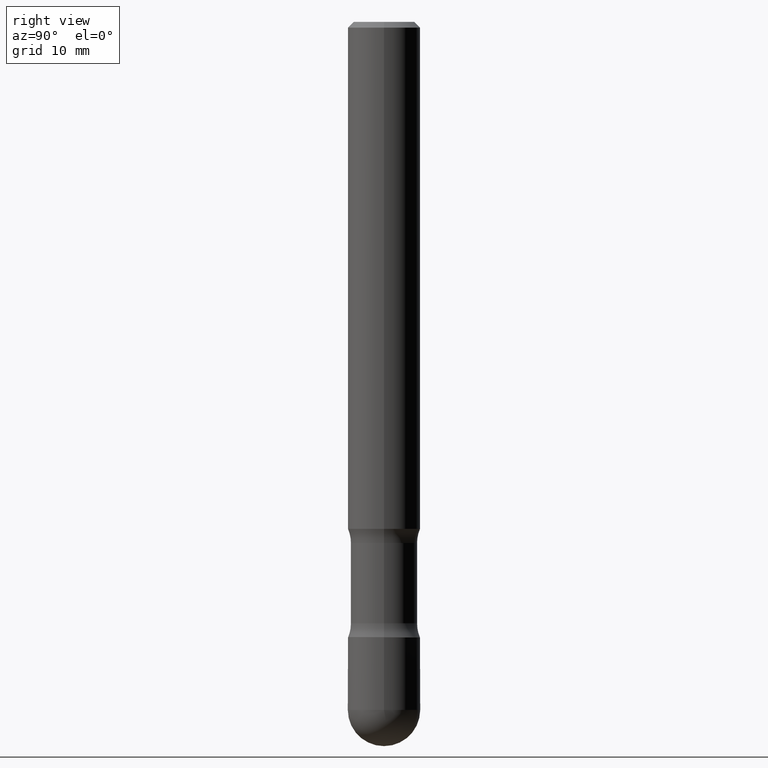
[diagram: clean part render]
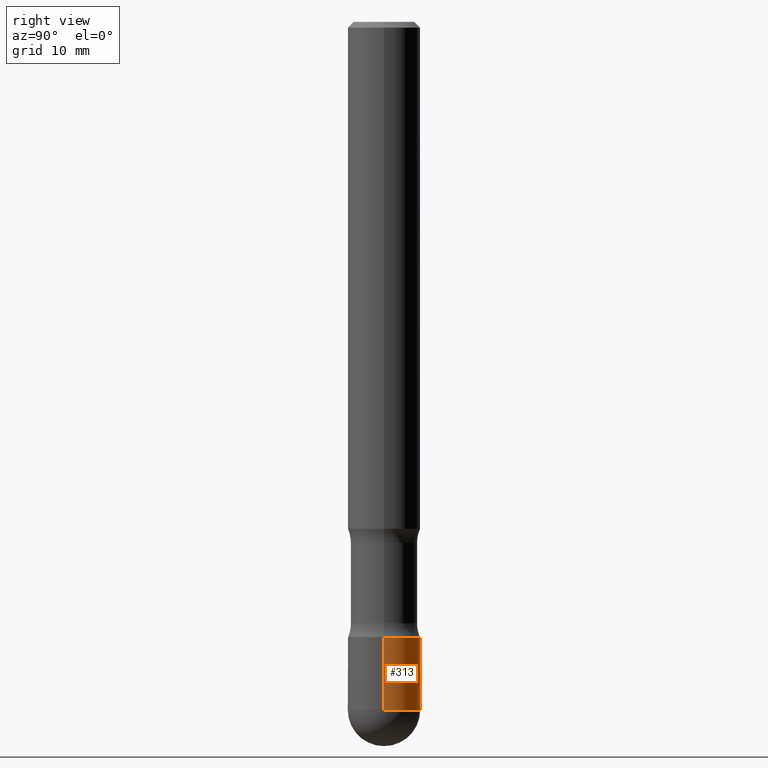
[diagram: same view with one face highlighted and labeled with its STEP entity id]
A machine part, right view. The second image highlights one B-rep face of the part: STEP entity #313.
In plain terms, the highlighted cylindrical surface (edge-blend (fillet) strip) has radius 3.175 mm, axis along (-0, 0, 1).
Its self-contained STEP definition (entity closure, byte-faithful):
#2 = VERTEX_POINT ( 'NONE', #199 ) ;
#5 = CARTESIAN_POINT ( 'NONE',  ( -0.1249999999999995559, -6.967654592696955583E-15, -2.125000000000000000 ) ) ;
#7 = CARTESIAN_POINT ( 'NONE',  ( 5.807988414689700538E-29, -8.292268179752471696E-15, -2.375000000000000000 ) ) ;
#24 = ORIENTED_EDGE ( 'NONE', *, *, #94, .T. ) ;
#44 = CARTESIAN_POINT ( 'NONE',  ( 0.1249999999999995559, -8.292268179752463807E-15, -2.125000000000000000 ) ) ;
#49 = CARTESIAN_POINT ( 'NONE',  ( 0.000000000000000000, 0.000000000000000000, 0.000000000000000000 ) ) ;
#69 = ORIENTED_EDGE ( 'NONE', *, *, #340, .T. ) ;
#93 = DIRECTION ( 'NONE',  ( 1.000000000000000000, -6.982962677686265922E-15, 4.876176775795935793E-29 ) ) ;
#94 = EDGE_CURVE ( 'NONE', #293, #159, #403, .T. ) ;
#114 = CARTESIAN_POINT ( 'NONE',  ( 0.1249999999999995559, -8.728703347107801834E-16, 6.095220969744898021E-30 ) ) ;
#127 = EDGE_CURVE ( 'NONE', #254, #195, #498, .T. ) ;
#131 = FACE_OUTER_BOUND ( 'NONE', #453, .T. ) ;
#158 = ORIENTED_EDGE ( 'NONE', *, *, #434, .F. ) ;
#159 = VERTEX_POINT ( 'NONE', #5 ) ;
#175 = DIRECTION ( 'NONE',  ( 1.000000000000000000, -6.982962677686264344E-15, 0.000000000000000000 ) ) ;
#186 = DIRECTION ( 'NONE',  ( -2.445468806185136597E-29, 3.491481338843145583E-15, 1.000000000000000000 ) ) ;
#190 = DIRECTION ( 'NONE',  ( -2.445468806185136877E-29, 3.491481338843145188E-15, 1.000000000000000000 ) ) ;
#195 = VERTEX_POINT ( 'NONE', #44 ) ;
#199 = CARTESIAN_POINT ( 'NONE',  ( 8.881784197001796637E-16, 0.1249999999999911876, -2.375000000000000888 ) ) ;
#254 = VERTEX_POINT ( 'NONE', #436 ) ;
#262 = DIRECTION ( 'NONE',  ( -2.445468806185136597E-29, 3.491481338843145583E-15, 1.000000000000000000 ) ) ;
#270 = CARTESIAN_POINT ( 'NONE',  ( 5.807988414689700538E-29, -8.292268179752471696E-15, -2.375000000000000000 ) ) ;
#277 = DIRECTION ( 'NONE',  ( 1.000000000000000000, -6.982962677686264344E-15, 0.000000000000000000 ) ) ;
#293 = VERTEX_POINT ( 'NONE', #435 ) ;
#300 = AXIS2_PLACEMENT_3D ( 'NONE', #270, #398, #277 ) ;
#309 = AXIS2_PLACEMENT_3D ( 'NONE', #49, #186, #93 ) ;
#313 = ADVANCED_FACE ( 'NONE', ( #131 ), #438, .T. ) ;
#340 = EDGE_CURVE ( 'NONE', #254, #2, #508, .T. ) ;
#398 = DIRECTION ( 'NONE',  ( -2.445468806185136597E-29, 3.491481338843145583E-15, 1.000000000000000000 ) ) ;
#401 = CARTESIAN_POINT ( 'NONE',  ( -0.1249999999999995559, 8.881784197001220769E-16, -6.148668862818609806E-30 ) ) ;
#403 = LINE ( 'NONE', #401, #440 ) ;
#415 = ORIENTED_EDGE ( 'NONE', *, *, #127, .F. ) ;
#433 = DIRECTION ( 'NONE',  ( 1.000000000000000000, -6.982962677686264344E-15, 0.000000000000000000 ) ) ;
#434 = EDGE_CURVE ( 'NONE', #195, #159, #549, .T. ) ;
#435 = CARTESIAN_POINT ( 'NONE',  ( -0.1249999999999995559, -6.967654592696956371E-15, -2.375000000000000000 ) ) ;
#436 = CARTESIAN_POINT ( 'NONE',  ( 0.1249999999999995559, -8.728703347107858632E-15, -2.375000000000000000 ) ) ;
#438 = CYLINDRICAL_SURFACE ( 'NONE', #309, 0.1249999999999995559 ) ;
#440 = VECTOR ( 'NONE', #190, 39.37007874015748143 ) ;
#449 = ORIENTED_EDGE ( 'NONE', *, *, #495, .T. ) ;
#453 = EDGE_LOOP ( 'NONE', ( #449, #24, #158, #415, #69 ) ) ;
#455 = AXIS2_PLACEMENT_3D ( 'NONE', #563, #262, #175 ) ;
#470 = CIRCLE ( 'NONE', #300, 0.1249999999999995559 ) ;
#474 = DIRECTION ( 'NONE',  ( -2.445468806185136597E-29, 3.491481338843145583E-15, 1.000000000000000000 ) ) ;
#479 = AXIS2_PLACEMENT_3D ( 'NONE', #7, #474, #433 ) ;
#495 = EDGE_CURVE ( 'NONE', #2, #293, #470, .T. ) ;
#498 = LINE ( 'NONE', #114, #513 ) ;
#508 = CIRCLE ( 'NONE', #479, 0.1249999999999995559 ) ;
#513 = VECTOR ( 'NONE', #551, 39.37007874015748143 ) ;
#549 = CIRCLE ( 'NONE', #455, 0.1249999999999995559 ) ;
#551 = DIRECTION ( 'NONE',  ( -2.445468806185136877E-29, 3.491481338843145188E-15, 1.000000000000000000 ) ) ;
#563 = CARTESIAN_POINT ( 'NONE',  ( 5.196621213143415268E-29, -7.419397845041683624E-15, -2.125000000000000000 ) ) ;